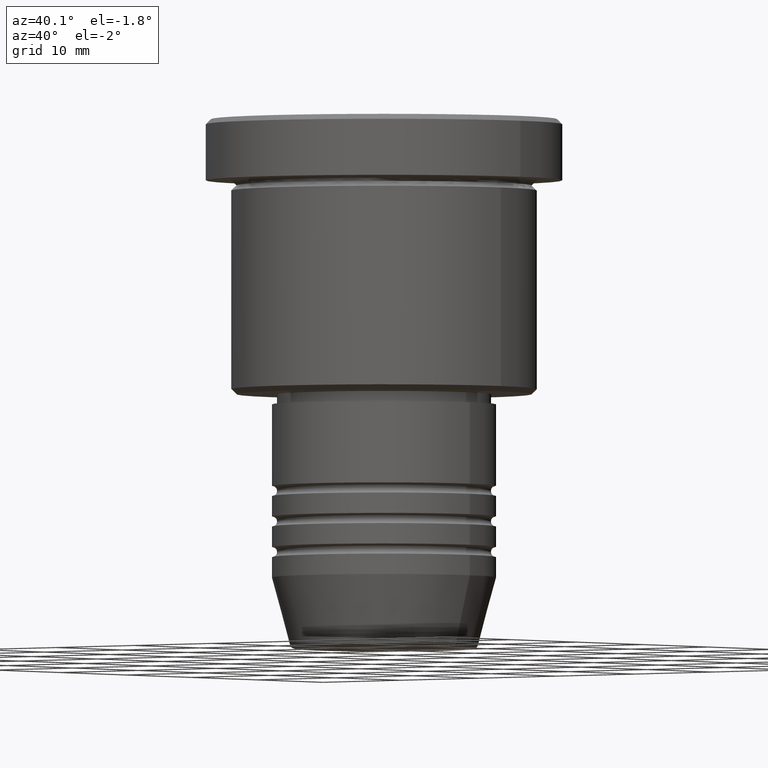
[diagram: clean part render]
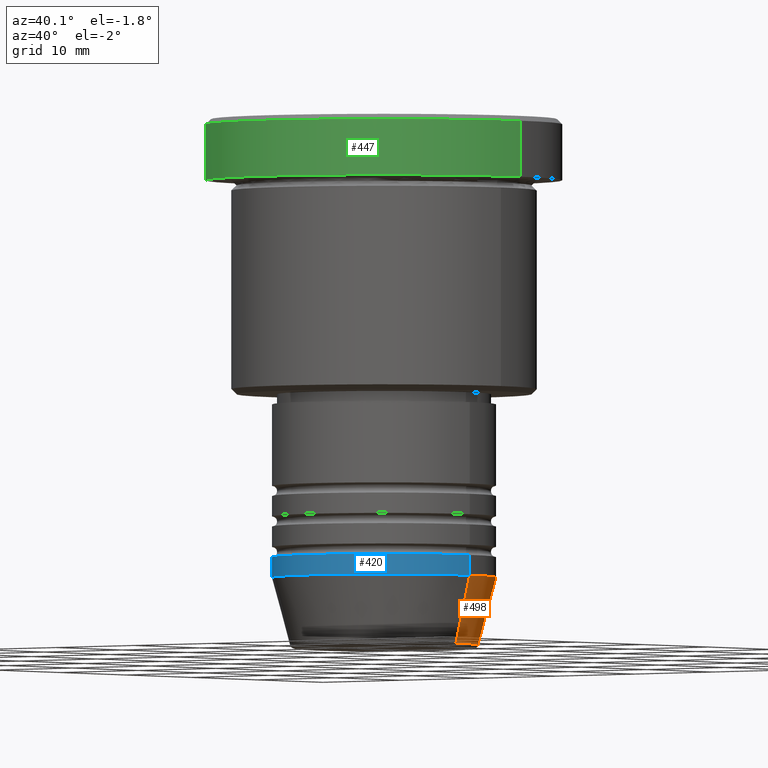
[diagram: same view with three faces highlighted in distinct colors, each labeled with its STEP entity id]
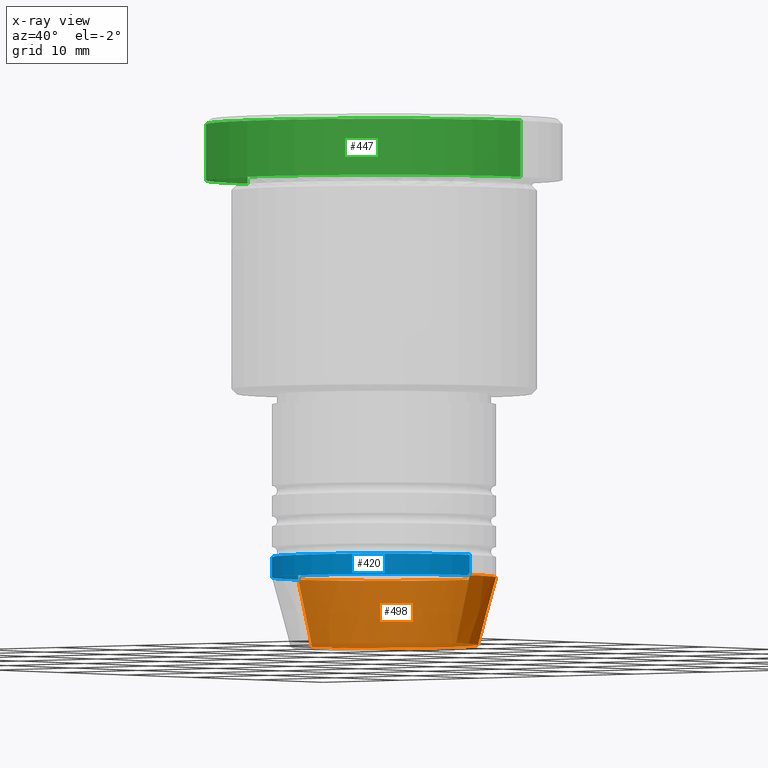
[diagram: x-ray of the same camera — body ghosted, the three highlighted faces saturated]
A machine part, auxiliary view with three faces highlighted in distinct colors.
The next image is the same camera in x-ray (body ghosted, the three faces saturated) — at least one of them is partly hidden behind the body in this view.
Their STEP definitions:

[orange] entity #498 — the highlighted conical surface has half-angle 15 deg.
#8 = DIRECTION ( 'NONE',  ( 1.000000000000000000, 0.000000000000000000, 0.000000000000000000 ) ) ;
#70 = VECTOR ( 'NONE', #643, 1000.000000000000000 ) ;
#87 = EDGE_CURVE ( 'NONE', #858, #402, #332, .T. ) ;
#105 = ORIENTED_EDGE ( 'NONE', *, *, #391, .F. ) ;
#162 = CARTESIAN_POINT ( 'NONE',  ( -9.223655072137193045, 1.238341722557647202E-15, -51.62940952255126348 ) ) ;
#169 = DIRECTION ( 'NONE',  ( 1.000000000000000000, 0.000000000000000000, 0.000000000000000000 ) ) ;
#171 = CIRCLE ( 'NONE', #518, 9.223655072137193045 ) ;
#208 = ORIENTED_EDGE ( 'NONE', *, *, #653, .F. ) ;
#224 = ORIENTED_EDGE ( 'NONE', *, *, #87, .T. ) ;
#230 = DIRECTION ( 'NONE',  ( 1.000000000000000000, 0.000000000000000000, 0.000000000000000000 ) ) ;
#332 = LINE ( 'NONE', #435, #868 ) ;
#335 = DIRECTION ( 'NONE',  ( -0.000000000000000000, -0.000000000000000000, 1.000000000000000000 ) ) ;
#353 = EDGE_LOOP ( 'NONE', ( #1144, #224, #105, #208 ) ) ;
#375 = CARTESIAN_POINT ( 'NONE',  ( 11.00000000000000000, 0.000000000000000000, -45.00000000000000000 ) ) ;
#391 = EDGE_CURVE ( 'NONE', #1130, #402, #1117, .T. ) ;
#402 = VERTEX_POINT ( 'NONE', #857 ) ;
#409 = DIRECTION ( 'NONE',  ( -0.000000000000000000, -0.000000000000000000, 1.000000000000000000 ) ) ;
#435 = CARTESIAN_POINT ( 'NONE',  ( -11.00000000000000000, 1.347111479062088405E-15, -45.00000000000000000 ) ) ;
#498 = ADVANCED_FACE ( 'NONE', ( #1071 ), #1082, .T. ) ;
#518 = AXIS2_PLACEMENT_3D ( 'NONE', #805, #1088, #169 ) ;
#528 = DIRECTION ( 'NONE',  ( -0.2588190451025213501, 3.169619151431772337E-17, 0.9659258262890680902 ) ) ;
#535 = AXIS2_PLACEMENT_3D ( 'NONE', #692, #335, #8 ) ;
#538 = CARTESIAN_POINT ( 'NONE',  ( 9.223655072137193045, 0.000000000000000000, -51.62940952255126348 ) ) ;
#575 = VERTEX_POINT ( 'NONE', #538 ) ;
#580 = LINE ( 'NONE', #375, #70 ) ;
#643 = DIRECTION ( 'NONE',  ( 0.2588190451025213501, 0.000000000000000000, 0.9659258262890680902 ) ) ;
#653 = EDGE_CURVE ( 'NONE', #575, #1130, #580, .T. ) ;
#660 = CARTESIAN_POINT ( 'NONE',  ( 11.00000000000000000, 0.000000000000000000, -45.00000000000000000 ) ) ;
#692 = CARTESIAN_POINT ( 'NONE',  ( 0.000000000000000000, 0.000000000000000000, -45.00000000000000000 ) ) ;
#805 = CARTESIAN_POINT ( 'NONE',  ( 0.000000000000000000, 0.000000000000000000, -51.62940952255126348 ) ) ;
#857 = CARTESIAN_POINT ( 'NONE',  ( -11.00000000000000000, 1.347111479062088405E-15, -45.00000000000000000 ) ) ;
#858 = VERTEX_POINT ( 'NONE', #162 ) ;
#868 = VECTOR ( 'NONE', #528, 1000.000000000000000 ) ;
#961 = EDGE_CURVE ( 'NONE', #575, #858, #171, .T. ) ;
#968 = CARTESIAN_POINT ( 'NONE',  ( 0.000000000000000000, 0.000000000000000000, -45.00000000000000000 ) ) ;
#1039 = AXIS2_PLACEMENT_3D ( 'NONE', #968, #409, #230 ) ;
#1071 = FACE_OUTER_BOUND ( 'NONE', #353, .T. ) ;
#1082 = CONICAL_SURFACE ( 'NONE', #535, 11.00000000000000000, 0.2617993877991500740 ) ;
#1088 = DIRECTION ( 'NONE',  ( -0.000000000000000000, -0.000000000000000000, 1.000000000000000000 ) ) ;
#1117 = CIRCLE ( 'NONE', #1039, 11.00000000000000000 ) ;
#1130 = VERTEX_POINT ( 'NONE', #660 ) ;
#1144 = ORIENTED_EDGE ( 'NONE', *, *, #961, .T. ) ;

[blue] entity #420 — the highlighted cylindrical surface (partial cylindrical patch) has radius 11 mm, axis along (-0, -0, 1).
#61 = DIRECTION ( 'NONE',  ( 1.000000000000000000, 0.000000000000000000, 0.000000000000000000 ) ) ;
#127 = ORIENTED_EDGE ( 'NONE', *, *, #549, .F. ) ;
#145 = FACE_OUTER_BOUND ( 'NONE', #878, .T. ) ;
#192 = CARTESIAN_POINT ( 'NONE',  ( 0.000000000000000000, 0.000000000000000000, -43.00000000000000000 ) ) ;
#292 = EDGE_CURVE ( 'NONE', #1130, #1133, #1097, .T. ) ;
#298 = ORIENTED_EDGE ( 'NONE', *, *, #292, .T. ) ;
#373 = CARTESIAN_POINT ( 'NONE',  ( -11.00000000000000000, 1.347111479062088405E-15, -43.00000000000000000 ) ) ;
#402 = VERTEX_POINT ( 'NONE', #857 ) ;
#420 = ADVANCED_FACE ( 'NONE', ( #145 ), #576, .T. ) ;
#474 = DIRECTION ( 'NONE',  ( -0.000000000000000000, -0.000000000000000000, 1.000000000000000000 ) ) ;
#484 = CARTESIAN_POINT ( 'NONE',  ( 0.000000000000000000, 0.000000000000000000, 0.000000000000000000 ) ) ;
#509 = DIRECTION ( 'NONE',  ( -0.000000000000000000, -0.000000000000000000, 1.000000000000000000 ) ) ;
#546 = DIRECTION ( 'NONE',  ( -0.000000000000000000, -0.000000000000000000, 1.000000000000000000 ) ) ;
#549 = EDGE_CURVE ( 'NONE', #402, #1103, #793, .T. ) ;
#566 = DIRECTION ( 'NONE',  ( 1.000000000000000000, 0.000000000000000000, 0.000000000000000000 ) ) ;
#576 = CYLINDRICAL_SURFACE ( 'NONE', #1018, 11.00000000000000000 ) ;
#630 = CIRCLE ( 'NONE', #792, 11.00000000000000000 ) ;
#634 = CARTESIAN_POINT ( 'NONE',  ( -11.00000000000000000, 1.347111479062088405E-15, 0.000000000000000000 ) ) ;
#635 = DIRECTION ( 'NONE',  ( -0.000000000000000000, -0.000000000000000000, 1.000000000000000000 ) ) ;
#638 = EDGE_CURVE ( 'NONE', #402, #1130, #630, .T. ) ;
#642 = ORIENTED_EDGE ( 'NONE', *, *, #1085, .F. ) ;
#652 = CARTESIAN_POINT ( 'NONE',  ( 0.000000000000000000, 0.000000000000000000, -45.00000000000000000 ) ) ;
#660 = CARTESIAN_POINT ( 'NONE',  ( 11.00000000000000000, 0.000000000000000000, -45.00000000000000000 ) ) ;
#792 = AXIS2_PLACEMENT_3D ( 'NONE', #652, #474, #566 ) ;
#793 = LINE ( 'NONE', #634, #844 ) ;
#828 = CARTESIAN_POINT ( 'NONE',  ( 11.00000000000000000, 0.000000000000000000, 0.000000000000000000 ) ) ;
#841 = AXIS2_PLACEMENT_3D ( 'NONE', #192, #546, #924 ) ;
#844 = VECTOR ( 'NONE', #972, 1000.000000000000000 ) ;
#851 = ORIENTED_EDGE ( 'NONE', *, *, #638, .T. ) ;
#857 = CARTESIAN_POINT ( 'NONE',  ( -11.00000000000000000, 1.347111479062088405E-15, -45.00000000000000000 ) ) ;
#878 = EDGE_LOOP ( 'NONE', ( #127, #851, #298, #642 ) ) ;
#924 = DIRECTION ( 'NONE',  ( 1.000000000000000000, 0.000000000000000000, 0.000000000000000000 ) ) ;
#972 = DIRECTION ( 'NONE',  ( -0.000000000000000000, -0.000000000000000000, 1.000000000000000000 ) ) ;
#995 = CIRCLE ( 'NONE', #841, 11.00000000000000000 ) ;
#1018 = AXIS2_PLACEMENT_3D ( 'NONE', #484, #509, #61 ) ;
#1026 = CARTESIAN_POINT ( 'NONE',  ( 11.00000000000000000, 0.000000000000000000, -43.00000000000000000 ) ) ;
#1080 = VECTOR ( 'NONE', #635, 1000.000000000000000 ) ;
#1085 = EDGE_CURVE ( 'NONE', #1103, #1133, #995, .T. ) ;
#1097 = LINE ( 'NONE', #828, #1080 ) ;
#1103 = VERTEX_POINT ( 'NONE', #373 ) ;
#1130 = VERTEX_POINT ( 'NONE', #660 ) ;
#1133 = VERTEX_POINT ( 'NONE', #1026 ) ;

[green] entity #447 — the highlighted cylindrical surface (partial cylindrical patch) has radius 17.5 mm, axis along (-0, -0, 1).
#24 = ORIENTED_EDGE ( 'NONE', *, *, #1051, .T. ) ;
#36 = DIRECTION ( 'NONE',  ( 1.000000000000000000, 0.000000000000000000, 0.000000000000000000 ) ) ;
#52 = EDGE_LOOP ( 'NONE', ( #1019, #24, #414, #568 ) ) ;
#159 = CIRCLE ( 'NONE', #424, 17.50000000000000000 ) ;
#213 = CARTESIAN_POINT ( 'NONE',  ( -17.50000000000000000, 2.143131898507868248E-15, -0.5000000000000212053 ) ) ;
#262 = EDGE_CURVE ( 'NONE', #470, #718, #365, .T. ) ;
#310 = CARTESIAN_POINT ( 'NONE',  ( 0.000000000000000000, 0.000000000000000000, 0.000000000000000000 ) ) ;
#318 = CYLINDRICAL_SURFACE ( 'NONE', #921, 17.50000000000000000 ) ;
#365 = LINE ( 'NONE', #451, #767 ) ;
#378 = CIRCLE ( 'NONE', #592, 17.50000000000000000 ) ;
#414 = ORIENTED_EDGE ( 'NONE', *, *, #529, .T. ) ;
#424 = AXIS2_PLACEMENT_3D ( 'NONE', #637, #1171, #527 ) ;
#447 = ADVANCED_FACE ( 'NONE', ( #760 ), #318, .T. ) ;
#451 = CARTESIAN_POINT ( 'NONE',  ( -17.50000000000000000, 2.143131898507868248E-15, 0.000000000000000000 ) ) ;
#469 = DIRECTION ( 'NONE',  ( -0.000000000000000000, -0.000000000000000000, 1.000000000000000000 ) ) ;
#470 = VERTEX_POINT ( 'NONE', #916 ) ;
#489 = VERTEX_POINT ( 'NONE', #1002 ) ;
#527 = DIRECTION ( 'NONE',  ( 1.000000000000000000, 0.000000000000000000, 0.000000000000000000 ) ) ;
#529 = EDGE_CURVE ( 'NONE', #1068, #489, #541, .T. ) ;
#541 = LINE ( 'NONE', #911, #808 ) ;
#568 = ORIENTED_EDGE ( 'NONE', *, *, #837, .T. ) ;
#592 = AXIS2_PLACEMENT_3D ( 'NONE', #675, #688, #602 ) ;
#602 = DIRECTION ( 'NONE',  ( 1.000000000000000000, 0.000000000000000000, 0.000000000000000000 ) ) ;
#603 = DIRECTION ( 'NONE',  ( -0.000000000000000000, -0.000000000000000000, 1.000000000000000000 ) ) ;
#637 = CARTESIAN_POINT ( 'NONE',  ( 0.000000000000000000, 0.000000000000000000, -5.999999999999995559 ) ) ;
#675 = CARTESIAN_POINT ( 'NONE',  ( 0.000000000000000000, 0.000000000000000000, -0.5000000000000212053 ) ) ;
#688 = DIRECTION ( 'NONE',  ( 0.000000000000000000, 0.000000000000000000, -1.000000000000000000 ) ) ;
#718 = VERTEX_POINT ( 'NONE', #213 ) ;
#760 = FACE_OUTER_BOUND ( 'NONE', #52, .T. ) ;
#767 = VECTOR ( 'NONE', #469, 1000.000000000000000 ) ;
#808 = VECTOR ( 'NONE', #603, 1000.000000000000000 ) ;
#831 = CARTESIAN_POINT ( 'NONE',  ( 17.50000000000000000, 0.000000000000000000, -5.999999999999995559 ) ) ;
#837 = EDGE_CURVE ( 'NONE', #489, #718, #378, .T. ) ;
#850 = DIRECTION ( 'NONE',  ( -0.000000000000000000, -0.000000000000000000, 1.000000000000000000 ) ) ;
#911 = CARTESIAN_POINT ( 'NONE',  ( 17.50000000000000000, 0.000000000000000000, 0.000000000000000000 ) ) ;
#916 = CARTESIAN_POINT ( 'NONE',  ( -17.50000000000000000, 2.143131898507868248E-15, -5.999999999999995559 ) ) ;
#921 = AXIS2_PLACEMENT_3D ( 'NONE', #310, #850, #36 ) ;
#1002 = CARTESIAN_POINT ( 'NONE',  ( 17.50000000000000000, 0.000000000000000000, -0.5000000000000212053 ) ) ;
#1019 = ORIENTED_EDGE ( 'NONE', *, *, #262, .F. ) ;
#1051 = EDGE_CURVE ( 'NONE', #470, #1068, #159, .T. ) ;
#1068 = VERTEX_POINT ( 'NONE', #831 ) ;
#1171 = DIRECTION ( 'NONE',  ( -0.000000000000000000, -0.000000000000000000, 1.000000000000000000 ) ) ;